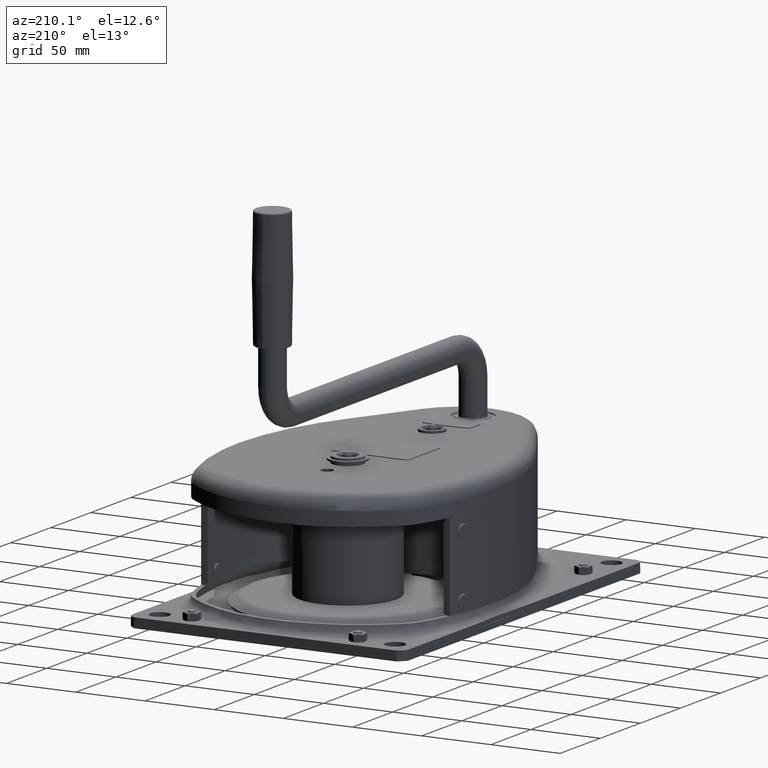
[diagram: clean part render]
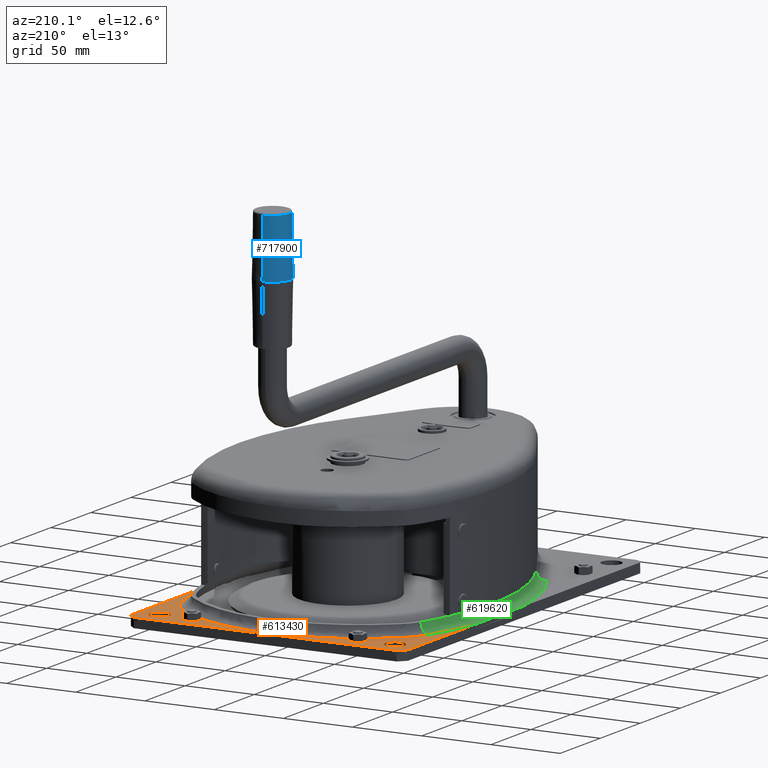
[diagram: same view with three faces highlighted in distinct colors, each labeled with its STEP entity id]
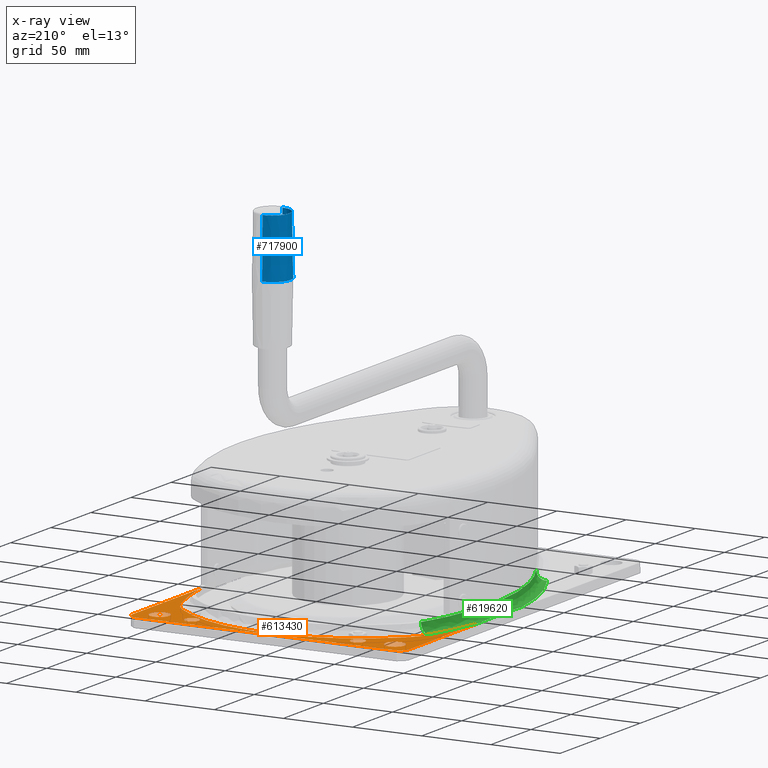
[diagram: x-ray of the same camera — body ghosted, the three highlighted faces saturated]
A machine part, auxiliary view with three faces highlighted in distinct colors.
The next image is the same camera in x-ray (body ghosted, the three faces saturated) — at least one of them is partly hidden behind the body in this view.
Their STEP definitions:

[orange] entity #613430 — the highlighted planar face has unit normal (0, 0, 1).
#603330=CARTESIAN_POINT('',(98.1871716525991,-104.729553244837,80.));
#603340=DIRECTION('',(0.0174524064372835,0.999847695156391,0.));
#603350=VECTOR('',#603340,1.);
#603360=LINE('',#603330,#603350);
#605210=CARTESIAN_POINT('',(99.780482113474,-13.4488580754262,80.));
#605220=VERTEX_POINT('',#605210);
#605250=CARTESIAN_POINT('',(98.3093384976601,-97.7306193787422,80.));
#605260=VERTEX_POINT('',#605250);
#605270=EDGE_CURVE('',#605260,#605220,#603360,.T.);
#605510=CARTESIAN_POINT('',(-101.660200533618,-94.2401380912856,80.));
#605520=VERTEX_POINT('',#605510);
#605550=CARTESIAN_POINT('',(-96.5466454474941,198.715236589537,80.));
#605560=DIRECTION('',(-0.0174524064372835,-0.999847695156391,0.));
#605570=VECTOR('',#605560,1.);
#605580=LINE('',#605550,#605570);
#605590=CARTESIAN_POINT('',(-100.189056918394,-9.95837682173562,80.));
#605600=VERTEX_POINT('',#605590);
#605610=EDGE_CURVE('',#605600,#605520,#605580,.T.);
#608570=CARTESIAN_POINT('',(-96.5466454474941,198.715236589537,80.));
#608580=DIRECTION('',(0.,-0.,-1.));
#608590=DIRECTION('',(0.999847695156391,-0.0174524064372835,0.));
#608600=AXIS2_PLACEMENT_3D('',#608570,#608580,#608590);
#608610=PLANE('',#608600);
#610090=CARTESIAN_POINT('',(-90.3200556012915,-52.5797952541012,80.));
#610100=CARTESIAN_POINT('',(-90.4410247330788,-52.2299720672284,80.));
#610110=CARTESIAN_POINT('',(-90.5613935581654,-51.8799412792595,80.));
#610120=CARTESIAN_POINT('',(-93.1036679221178,-44.4102403549494,80.));
#610130=CARTESIAN_POINT('',(-95.1371604526582,-37.1634754640695,80.));
#610140=CARTESIAN_POINT('',(-98.6279890318529,-21.4846917592984,80.));
#610150=CARTESIAN_POINT('',(-99.9663917189243,-13.0410837653149,80.));
#610160=CARTESIAN_POINT('',(-101.592365611007,3.963061561107,80.));
#610170=CARTESIAN_POINT('',(-101.87837841351,12.5073013977237,80.));
#610180=CARTESIAN_POINT('',(-101.393175298389,29.5821169851113,80.));
#610190=CARTESIAN_POINT('',(-100.622424419963,38.0963275066738,80.));
#610200=CARTESIAN_POINT('',(-98.0334641733759,54.98069999351,80.));
#610210=CARTESIAN_POINT('',(-96.2177361747872,63.3346792583405,80.));
#610220=CARTESIAN_POINT('',(-91.5646099776627,79.7704075971235,80.));
#610230=CARTESIAN_POINT('',(-88.7316715331054,87.8364039702585,80.));
#610240=CARTESIAN_POINT('',(-82.2295584163411,103.231153784188,80.));
#610250=CARTESIAN_POINT('',(-78.6077773218684,110.562905684943,80.));
#610260=CARTESIAN_POINT('',(-74.3790964269654,117.98268360638,80.));
#610270=CARTESIAN_POINT('',(-74.194800907864,118.30368817892,80.));
#610280=CARTESIAN_POINT('',(-74.0099550838915,118.624375537057,80.));
#610290=B_SPLINE_CURVE_WITH_KNOTS('',3,(#610090,#610100,#610110,#610120,
#610130,#610140,#610150,#610160,#610170,#610180,#610190,#610200,#610210,
#610220,#610230,#610240,#610250,#610260,#610270,#610280),.UNSPECIFIED.,
.F.,.F.,(4,2,2,2,2,2,2,2,2,4),(0.,1.09154099031254,23.268442179075,
48.4497372926723,73.6310324062694,98.812327522146,123.993622638023,
149.1749177539,173.264853735063,174.356256054814),.UNSPECIFIED.);
#610350=CARTESIAN_POINT('',(78.1048012218286,115.969202589201,80.));
#610360=CARTESIAN_POINT('',(78.2783435235066,115.642257850143,80.));
#610370=CARTESIAN_POINT('',(78.4513247808119,115.315015293084,80.));
#610380=CARTESIAN_POINT('',(82.1166719008934,108.327539262062,80.));
#610390=CARTESIAN_POINT('',(85.2449121594937,101.481751791104,80.));
#610400=CARTESIAN_POINT('',(91.1151911316954,86.5301643393107,80.));
#610410=CARTESIAN_POINT('',(93.7415130621304,78.3945469179629,80.));
#610420=CARTESIAN_POINT('',(97.9739898743574,61.8455019481236,80.));
#610430=CARTESIAN_POINT('',(99.5760881704265,53.4479357079229,80.));
#610440=CARTESIAN_POINT('',(101.733629224764,36.503031871381,80.));
#610450=CARTESIAN_POINT('',(102.287004103772,27.9719349912778,80.));
#610460=CARTESIAN_POINT('',(102.336615614319,10.8902989987907,80.));
#610470=CARTESIAN_POINT('',(101.832804696076,2.35613165258269,80.));
#610480=CARTESIAN_POINT('',(99.7737279880781,-14.60101883305,80.));
#610490=CARTESIAN_POINT('',(98.220435704984,-23.0077495185009,80.));
#610500=CARTESIAN_POINT('',(94.1737920846206,-39.2219553976427,80.));
#610510=CARTESIAN_POINT('',(91.7277288157936,-47.0250739239347,80.));
#610520=CARTESIAN_POINT('',(88.6956407748134,-55.0088880899112,80.));
#610530=CARTESIAN_POINT('',(88.5631299669679,-55.3545029902722,80.));
#610540=CARTESIAN_POINT('',(88.430026570216,-55.6998895065706,80.));
#610550=B_SPLINE_CURVE_WITH_KNOTS('',3,(#610350,#610360,#610370,#610380,
#610390,#610400,#610410,#610420,#610430,#610440,#610450,#610460,#610470,
#610480,#610490,#610500,#610510,#610520,#610530,#610540),.UNSPECIFIED.,
.F.,.F.,(4,2,2,2,2,2,2,2,2,4),(0.,1.09154099010989,23.2684421705911,
48.449737284188,73.6310323977846,98.812327515783,123.993622633781,
149.17491775178,173.264853736531,174.356256054546),.UNSPECIFIED.);
#610950=CARTESIAN_POINT('',(-79.5239319886793,-86.6253094716546,80.));
#610960=VERTEX_POINT('',#610950);
#610990=CARTESIAN_POINT('',(-86.522865854774,-86.5031426265936,80.));
#611000=DIRECTION('',(0.,-0.,-1.));
#611010=DIRECTION('',(0.999847695156391,-0.0174524064372835,0.));
#611020=AXIS2_PLACEMENT_3D('',#610990,#611000,#611010);
#611030=CIRCLE('',#611020,7.);
#611040=CARTESIAN_POINT('',(-93.5217997208688,-86.3809757815327,80.));
#611050=VERTEX_POINT('',#611040);
#611060=EDGE_CURVE('',#611050,#610960,#611030,.T.);
#611180=CARTESIAN_POINT('',(83.4512423218125,-89.4700517209318,80.));
#611190=DIRECTION('',(0.,-0.,-1.));
#611200=DIRECTION('',(0.999847695156391,-0.0174524064372835,0.));
#611210=AXIS2_PLACEMENT_3D('',#611180,#611190,#611200);
#611220=CIRCLE('',#611210,7.);
#611230=CARTESIAN_POINT('',(90.4501761879072,-89.5922185659928,80.));
#611240=VERTEX_POINT('',#611230);
#611250=CARTESIAN_POINT('',(76.4523084557177,-89.3478848758708,80.));
#611260=VERTEX_POINT('',#611250);
#611270=EDGE_CURVE('',#611240,#611260,#611220,.T.);
#611280=ORIENTED_EDGE('',*,*,#611270,.F.);
#611290=EDGE_CURVE('',#611260,#611240,#611220,.T.);
#611300=ORIENTED_EDGE('',*,*,#611290,.F.);
#611310=EDGE_LOOP('',(#611300,#611280));
#611320=FACE_BOUND('',#611310,.T.);
#611330=CARTESIAN_POINT('',(-61.5790306951761,-89.9389958729949,
79.9999999999999));
#611340=DIRECTION('',(3.20595505212568E-18,1.8366904192622E-16,-1.));
#611350=DIRECTION('',(-0.999847695156391,0.0174524064372835,0.));
#611360=AXIS2_PLACEMENT_3D('',#611330,#611340,#611350);
#611370=CIRCLE('',#611360,5.0000000000001);
#611380=CARTESIAN_POINT('',(-59.0038403206257,-85.6531593694842,
79.9999999999999));
#611390=VERTEX_POINT('',#611380);
#611400=CARTESIAN_POINT('',(-56.5797922193941,-90.0262579051813,
79.9999999999999));
#611410=VERTEX_POINT('',#611400);
#611420=EDGE_CURVE('',#611390,#611410,#611370,.T.);
#611430=ORIENTED_EDGE('',*,*,#611420,.F.);
#611440=CARTESIAN_POINT('',(-61.5790306951761,-89.9389958729949,
79.9999999999999));
#611450=DIRECTION('',(3.20595505212568E-18,1.8366904192622E-16,-1.));
#611460=DIRECTION('',(-0.999847695156391,0.0174524064372835,0.));
#611470=AXIS2_PLACEMENT_3D('',#611440,#611450,#611460);
#611480=CIRCLE('',#611470,5.0000000000001);
#611490=CARTESIAN_POINT('',(-59.1549825939444,-94.312094408692,
79.9999999999999));
#611500=VERTEX_POINT('',#611490);
#611510=EDGE_CURVE('',#611410,#611500,#611480,.T.);
#611520=ORIENTED_EDGE('',*,*,#611510,.F.);
#611530=CARTESIAN_POINT('',(-61.5790306951761,-89.9389958729949,
79.9999999999999));
#611540=DIRECTION('',(3.20595505212568E-18,1.8366904192622E-16,-1.));
#611550=DIRECTION('',(-0.999847695156391,0.0174524064372835,0.));
#611560=AXIS2_PLACEMENT_3D('',#611530,#611540,#611550);
#611570=CIRCLE('',#611560,5.0000000000001);
#611580=CARTESIAN_POINT('',(-64.1542210697265,-94.2248323765055,
79.9999999999999));
#611590=VERTEX_POINT('',#611580);
#611600=EDGE_CURVE('',#611500,#611590,#611570,.T.);
#611610=ORIENTED_EDGE('',*,*,#611600,.F.);
#611620=CARTESIAN_POINT('',(-61.5790306951761,-89.9389958729949,
79.9999999999999));
#611630=DIRECTION('',(3.20595505212568E-18,1.8366904192622E-16,-1.));
#611640=DIRECTION('',(-0.999847695156391,0.0174524064372835,0.));
#611650=AXIS2_PLACEMENT_3D('',#611620,#611630,#611640);
#611660=CIRCLE('',#611650,5.0000000000001);
#611670=CARTESIAN_POINT('',(-66.5782691709582,-89.8517338408084,
79.9999999999999));
#611680=VERTEX_POINT('',#611670);
#611690=EDGE_CURVE('',#611590,#611680,#611660,.T.);
#611700=ORIENTED_EDGE('',*,*,#611690,.F.);
#611710=CARTESIAN_POINT('',(-61.5790306951761,-89.9389958729949,
79.9999999999999));
#611720=DIRECTION('',(3.20595505212568E-18,1.8366904192622E-16,-1.));
#611730=DIRECTION('',(-0.999847695156391,0.0174524064372835,0.));
#611740=AXIS2_PLACEMENT_3D('',#611710,#611720,#611730);
#611750=CIRCLE('',#611740,5.0000000000001);
#611760=CARTESIAN_POINT('',(-64.0030787964078,-85.5658973372978,
79.9999999999999));
#611770=VERTEX_POINT('',#611760);
#611780=EDGE_CURVE('',#611680,#611770,#611750,.T.);
#611790=ORIENTED_EDGE('',*,*,#611780,.F.);
#611800=CARTESIAN_POINT('',(-61.5790306951761,-89.9389958729949,
79.9999999999999));
#611810=DIRECTION('',(3.20595505212568E-18,1.8366904192622E-16,-1.));
#611820=DIRECTION('',(-0.999847695156391,0.0174524064372835,0.));
#611830=AXIS2_PLACEMENT_3D('',#611800,#611810,#611820);
#611840=CIRCLE('',#611830,5.0000000000001);
#611850=EDGE_CURVE('',#611770,#611390,#611840,.T.);
#611860=ORIENTED_EDGE('',*,*,#611850,.F.);
#611870=EDGE_LOOP('',(#611860,#611790,#611700,#611610,#611520,#611430));
#611880=FACE_BOUND('',#611870,.T.);
#611890=CARTESIAN_POINT('',(58.4026927235909,-92.0332846454689,
79.9999999999999));
#611900=DIRECTION('',(3.20595505212568E-18,1.8366904192622E-16,-1.));
#611910=DIRECTION('',(-0.999847695156391,0.0174524064372835,0.));
#611920=AXIS2_PLACEMENT_3D('',#611890,#611900,#611910);
#611930=CIRCLE('',#611920,5.0000000000001);
#611940=CARTESIAN_POINT('',(53.4034542478088,-91.9460226132824,
79.9999999999999));
#611950=VERTEX_POINT('',#611940);
#611960=CARTESIAN_POINT('',(55.9786446223592,-87.6601861097718,
79.9999999999999));
#611970=VERTEX_POINT('',#611960);
#611980=EDGE_CURVE('',#611950,#611970,#611930,.T.);
#611990=ORIENTED_EDGE('',*,*,#611980,.F.);
#612000=CARTESIAN_POINT('',(58.4026927235909,-92.0332846454689,
79.9999999999999));
#612010=DIRECTION('',(3.20595505212568E-18,1.8366904192622E-16,-1.));
#612020=DIRECTION('',(-0.999847695156391,0.0174524064372835,0.));
#612030=AXIS2_PLACEMENT_3D('',#612000,#612010,#612020);
#612040=CIRCLE('',#612030,5.0000000000001);
#612050=CARTESIAN_POINT('',(60.9778830981412,-87.7474481419583,
79.9999999999999));
#612060=VERTEX_POINT('',#612050);
#612070=EDGE_CURVE('',#611970,#612060,#612040,.T.);
#612080=ORIENTED_EDGE('',*,*,#612070,.F.);
#612090=CARTESIAN_POINT('',(58.4026927235909,-92.0332846454689,
79.9999999999999));
#612100=DIRECTION('',(3.20595505212568E-18,1.8366904192622E-16,-1.));
#612110=DIRECTION('',(-0.999847695156391,0.0174524064372835,0.));
#612120=AXIS2_PLACEMENT_3D('',#612090,#612100,#612110);
#612130=CIRCLE('',#612120,5.0000000000001);
#612140=CARTESIAN_POINT('',(63.4019311993729,-92.1205466776553,
79.9999999999999));
#612150=VERTEX_POINT('',#612140);
#612160=EDGE_CURVE('',#612060,#612150,#612130,.T.);
#612170=ORIENTED_EDGE('',*,*,#612160,.F.);
#612180=CARTESIAN_POINT('',(58.4026927235909,-92.0332846454689,
79.9999999999999));
#612190=DIRECTION('',(3.20595505212568E-18,1.8366904192622E-16,-1.));
#612200=DIRECTION('',(-0.999847695156391,0.0174524064372835,0.));
#612210=AXIS2_PLACEMENT_3D('',#612180,#612190,#612200);
#612220=CIRCLE('',#612210,5.0000000000001);
#612230=CARTESIAN_POINT('',(60.8267408248225,-96.406383181166,
79.9999999999999));
#612240=VERTEX_POINT('',#612230);
#612250=EDGE_CURVE('',#612150,#612240,#612220,.T.);
#612260=ORIENTED_EDGE('',*,*,#612250,.F.);
#612270=CARTESIAN_POINT('',(58.4026927235909,-92.0332846454689,
79.9999999999999));
#612280=DIRECTION('',(3.20595505212568E-18,1.8366904192622E-16,-1.));
#612290=DIRECTION('',(-0.999847695156391,0.0174524064372835,0.));
#612300=AXIS2_PLACEMENT_3D('',#612270,#612280,#612290);
#612310=CIRCLE('',#612300,5.0000000000001);
#612320=CARTESIAN_POINT('',(55.8275023490405,-96.3191211489795,
79.9999999999999));
#612330=VERTEX_POINT('',#612320);
#612340=EDGE_CURVE('',#612240,#612330,#612310,.T.);
#612350=ORIENTED_EDGE('',*,*,#612340,.F.);
#612360=CARTESIAN_POINT('',(58.4026927235909,-92.0332846454689,
79.9999999999999));
#612370=DIRECTION('',(3.20595505212568E-18,1.8366904192622E-16,-1.));
#612380=DIRECTION('',(-0.999847695156391,0.0174524064372835,0.));
#612390=AXIS2_PLACEMENT_3D('',#612360,#612370,#612380);
#612400=CIRCLE('',#612390,5.0000000000001);
#612410=EDGE_CURVE('',#612330,#611950,#612400,.T.);
#612420=ORIENTED_EDGE('',*,*,#612410,.F.);
#612430=EDGE_LOOP('',(#612420,#612350,#612260,#612170,#612080,#611990));
#612440=FACE_BOUND('',#612430,.T.);
#612450=EDGE_CURVE('',#610960,#611050,#611030,.T.);
#612460=ORIENTED_EDGE('',*,*,#612450,.F.);
#612470=ORIENTED_EDGE('',*,*,#611060,.F.);
#612480=EDGE_LOOP('',(#612470,#612460));
#612490=FACE_BOUND('',#612480,.T.);
#612500=CARTESIAN_POINT('',(91.3104046315654,-97.6084525336812,80.));
#612510=DIRECTION('',(0.,-0.,-1.));
#612520=DIRECTION('',(0.999847695156391,-0.0174524064372835,0.));
#612530=AXIS2_PLACEMENT_3D('',#612500,#612510,#612520);
#612540=CIRCLE('',#612530,7.);
#612550=CARTESIAN_POINT('',(91.1882377865044,-104.607386399776,80.));
#612560=VERTEX_POINT('',#612550);
#612570=EDGE_CURVE('',#605260,#612560,#612540,.T.);
#612580=ORIENTED_EDGE('',*,*,#612570,.T.);
#612590=ORIENTED_EDGE('',*,*,#605270,.F.);
#612600=CARTESIAN_POINT('',(88.430026570216,-55.6998895065706,80.));
#612610=VERTEX_POINT('',#612600);
#612620=EDGE_CURVE('',#605220,#612610,#610550,.T.);
#612630=ORIENTED_EDGE('',*,*,#612620,.F.);
#612640=CARTESIAN_POINT('',(88.430026570216,-55.6998895065706,80.));
#612650=CARTESIAN_POINT('',(88.2829722407023,-56.0778836763042,80.));
#612660=CARTESIAN_POINT('',(88.1317461607493,-56.4542532071847,80.));
#612670=CARTESIAN_POINT('',(87.5328713401354,-57.8659842397067,80.));
#612680=CARTESIAN_POINT('',(87.0447510554527,-58.8845681548422,80.));
#612690=CARTESIAN_POINT('',(85.5073234915129,-61.7481517398949,80.));
#612700=CARTESIAN_POINT('',(84.3456618286415,-63.5265507276977,80.));
#612710=CARTESIAN_POINT('',(81.9806855068091,-66.5454527955084,80.));
#612720=CARTESIAN_POINT('',(80.8310121532727,-67.8197350504433,80.));
#612730=CARTESIAN_POINT('',(79.3057038006072,-69.2909071817456,80.));
#612740=CARTESIAN_POINT('',(79.0085070067546,-69.5667733612238,80.));
#612750=CARTESIAN_POINT('',(78.7083018838568,-69.8393283219234,80.));
#612760=B_SPLINE_CURVE_WITH_KNOTS('',3,(#612640,#612650,#612660,#612670,
#612680,#612690,#612700,#612710,#612720,#612730,#612740,#612750),
.UNSPECIFIED.,.F.,.F.,(4,2,2,2,2,4),(0.,1.10296859692646,
4.17019979192753,9.92578331095837,14.5803621224675,15.6816753343745),
.UNSPECIFIED.);
#612770=CARTESIAN_POINT('',(78.7083018838568,-69.8393283219234,80.));
#612780=VERTEX_POINT('',#612770);
#612790=EDGE_CURVE('',#612610,#612780,#612760,.T.);
#612800=ORIENTED_EDGE('',*,*,#612790,.F.);
#612810=CARTESIAN_POINT('',(78.7083018838568,-69.8393283219234,80.));
#612820=CARTESIAN_POINT('',(78.4293201908123,-70.0908098874992,80.));
#612830=CARTESIAN_POINT('',(78.1495574469873,-70.3414250189458,80.));
#612840=CARTESIAN_POINT('',(73.1797257397408,-74.7429271057852,80.));
#612850=CARTESIAN_POINT('',(68.1610995856646,-78.5158636820717,80.));
#612860=CARTESIAN_POINT('',(54.692917593602,-87.0383807059084,80.));
#612870=CARTESIAN_POINT('',(45.9176607747844,-91.1743160981825,80.));
#612880=CARTESIAN_POINT('',(27.5506215091759,-97.1937388493579,80.));
#612890=CARTESIAN_POINT('',(18.0295734146755,-99.0540444660465,80.));
#612900=CARTESIAN_POINT('',(-1.2524032621029,-100.390815605004,80.));
#612910=CARTESIAN_POINT('',(-10.9390739244523,-99.8621330117098,80.));
#612920=CARTESIAN_POINT('',(-29.9610333874464,-96.434795877726,80.));
#612930=CARTESIAN_POINT('',(-39.2230656352819,-93.5493405505153,80.));
#612940=CARTESIAN_POINT('',(-54.1306126513169,-86.7890092953691,80.));
#612950=CARTESIAN_POINT('',(-59.9874285031566,-83.5002375101533,80.));
#612960=CARTESIAN_POINT('',(-70.7625497297776,-76.1671799740958,80.));
#612970=CARTESIAN_POINT('',(-75.6967737734782,-72.1879822932209,80.));
#612980=CARTESIAN_POINT('',(-80.5568525818179,-67.5711741823742,80.));
#612990=CARTESIAN_POINT('',(-80.8276877694983,-67.3109583073274,80.));
#613000=CARTESIAN_POINT('',(-81.0977122450357,-67.0499038891391,80.));
#613010=B_SPLINE_CURVE_WITH_KNOTS('',3,(#612810,#612820,#612830,#612840,
#612850,#612860,#612870,#612880,#612890,#612900,#612910,#612920,#612930,
#612940,#612950,#612960,#612970,#612980,#612990,#613000),.UNSPECIFIED.,
.F.,.F.,(4,2,2,2,2,2,2,2,2,4),(0.,1.09432074039033,19.3421558232551,
47.4499546697541,75.557753516253,103.665552362752,131.773351209251,
151.273611776488,169.681393608144,170.773978615288),.UNSPECIFIED.);
#613020=CARTESIAN_POINT('',(-81.0977122450357,-67.0499038891391,80.));
#613030=VERTEX_POINT('',#613020);
#613040=EDGE_CURVE('',#612780,#613030,#613010,.T.);
#613050=ORIENTED_EDGE('',*,*,#613040,.F.);
#613060=CARTESIAN_POINT('',(-81.0977122450357,-67.0499038891391,80.));
#613070=CARTESIAN_POINT('',(-81.3883065978535,-66.7669560312363,80.));
#613080=CARTESIAN_POINT('',(-81.6757766487553,-66.4808016657838,80.));
#613090=CARTESIAN_POINT('',(-82.7417020837762,-65.378332379748,80.));
#613100=CARTESIAN_POINT('',(-83.4889117989804,-64.531306850893,80.));
#613110=CARTESIAN_POINT('',(-85.5250968208241,-61.9979799828131,80.));
#613120=CARTESIAN_POINT('',(-86.7088949539029,-60.2342388571329,80.));
#613130=CARTESIAN_POINT('',(-88.5650150162606,-56.8783930605932,80.));
#613140=CARTESIAN_POINT('',(-89.2893764100816,-55.3224866830091,80.));
#613150=CARTESIAN_POINT('',(-90.0483643005628,-53.3438885954145,80.));
#613160=CARTESIAN_POINT('',(-90.186321390706,-52.9625804201345,80.));
#613170=CARTESIAN_POINT('',(-90.3200556012915,-52.5797952541012,80.));
#613180=B_SPLINE_CURVE_WITH_KNOTS('',3,(#613060,#613070,#613080,#613090,
#613100,#613110,#613120,#613130,#613140,#613150,#613160,#613170),
.UNSPECIFIED.,.F.,.F.,(4,2,2,2,2,4),(0.,1.1029685969268,4.17019979257199
,9.92578331128115,14.5803621224686,15.6816753343758),.UNSPECIFIED.);
#613190=CARTESIAN_POINT('',(-90.3200556012915,-52.5797952541012,80.));
#613200=VERTEX_POINT('',#613190);
#613210=EDGE_CURVE('',#613030,#613200,#613180,.T.);
#613220=ORIENTED_EDGE('',*,*,#613210,.F.);
#613230=EDGE_CURVE('',#613200,#605600,#610290,.T.);
#613240=ORIENTED_EDGE('',*,*,#613230,.F.);
#613250=ORIENTED_EDGE('',*,*,#605610,.F.);
#613260=CARTESIAN_POINT('',(-94.6612666675234,-94.3623049363465,80.));
#613270=DIRECTION('',(0.,-0.,-1.));
#613280=DIRECTION('',(0.999847695156391,-0.0174524064372835,0.));
#613290=AXIS2_PLACEMENT_3D('',#613260,#613270,#613280);
#613300=CIRCLE('',#613290,7.);
#613310=CARTESIAN_POINT('',(-94.7834335125845,-101.361238802441,80.));
#613320=VERTEX_POINT('',#613310);
#613330=EDGE_CURVE('',#613320,#605520,#613300,.T.);
#613340=ORIENTED_EDGE('',*,*,#613330,.T.);
#613350=CARTESIAN_POINT('',(-101.782367378679,-101.23907195738,80.));
#613360=DIRECTION('',(0.999847695156391,-0.0174524064372835,0.));
#613370=VECTOR('',#613360,1.);
#613380=LINE('',#613350,#613370);
#613390=EDGE_CURVE('',#613320,#612560,#613380,.T.);
#613400=ORIENTED_EDGE('',*,*,#613390,.F.);
#613410=EDGE_LOOP('',(#613400,#613340,#613250,#613240,#613220,#613050,
#612800,#612630,#612590,#612580));
#613420=FACE_OUTER_BOUND('',#613410,.T.);
#613430=ADVANCED_FACE('',(#611320,#611880,#612440,#612490,#613420),
#608610,.T.);

[blue] entity #717900 — the highlighted conical surface has half-angle 1 deg.
#717290=CARTESIAN_POINT('',(211.5,-263.,0.));
#717300=VERTEX_POINT('',#717290);
#717330=CARTESIAN_POINT('',(211.5,-250.,0.));
#717340=DIRECTION('',(1.,0.,0.));
#717350=DIRECTION('',(0.,1.,0.));
#717360=AXIS2_PLACEMENT_3D('',#717330,#717340,#717350);
#717370=CIRCLE('',#717360,13.);
#717380=CARTESIAN_POINT('',(211.5,-237.,-1.59204083889156E-15));
#717390=VERTEX_POINT('',#717380);
#717400=EDGE_CURVE('',#717300,#717390,#717370,.T.);
#717590=CARTESIAN_POINT('',(211.5,-250.,0.));
#717600=DIRECTION('',(-1.,0.,0.));
#717610=DIRECTION('',(0.,1.,0.));
#717620=AXIS2_PLACEMENT_3D('',#717590,#717600,#717610);
#717630=CONICAL_SURFACE('',#717620,13.,0.0174532925199439);
#717640=CARTESIAN_POINT('',(211.5,-263.,-1.59204083889156E-15));
#717650=DIRECTION('',(-0.999847695156391,-0.0174524064372841,
-2.13730336808386E-18));
#717660=VECTOR('',#717650,744.882950481128);
#717670=LINE('',#717640,#717660);
#717680=CARTESIAN_POINT('',(254.017452406437,-262.257855107663,0.));
#717690=VERTEX_POINT('',#717680);
#717700=EDGE_CURVE('',#717690,#717300,#717670,.T.);
#717710=ORIENTED_EDGE('',*,*,#717700,.T.);
#717720=CARTESIAN_POINT('',(254.017452406437,-250.,0.));
#717730=DIRECTION('',(1.,0.,0.));
#717740=DIRECTION('',(0.,1.,0.));
#717750=AXIS2_PLACEMENT_3D('',#717720,#717730,#717740);
#717760=CIRCLE('',#717750,12.2578551076632);
#717770=CARTESIAN_POINT('',(254.017452406437,-237.742144892337,0.));
#717780=VERTEX_POINT('',#717770);
#717790=EDGE_CURVE('',#717690,#717780,#717760,.T.);
#717800=ORIENTED_EDGE('',*,*,#717790,.F.);
#717810=CARTESIAN_POINT('',(211.5,-237.,0.));
#717820=DIRECTION('',(-0.999847695156391,0.0174524064372841,0.));
#717830=VECTOR('',#717820,744.882950481128);
#717840=LINE('',#717810,#717830);
#717850=EDGE_CURVE('',#717780,#717390,#717840,.T.);
#717860=ORIENTED_EDGE('',*,*,#717850,.F.);
#717870=ORIENTED_EDGE('',*,*,#717400,.T.);
#717880=EDGE_LOOP('',(#717870,#717860,#717800,#717710));
#717890=FACE_OUTER_BOUND('',#717880,.T.);
#717900=ADVANCED_FACE('',(#717890),#717630,.T.);

[green] entity #619620 — the highlighted face is a freeform B-spline surface patch.
#50640=CARTESIAN_POINT('',(-67.9469861085619,115.125746204848,73.));
#50650=VERTEX_POINT('',#50640);
#57500=CARTESIAN_POINT('',(-74.0099550838915,118.624375537057,80.));
#57510=VERTEX_POINT('',#57500);
#57540=CARTESIAN_POINT('',(-67.946986108562,115.125746204848,73.));
#57550=CARTESIAN_POINT('',(-67.9469861085619,115.125746204848,
77.1005050633883));
#57560=CARTESIAN_POINT('',(-70.4583500863908,116.574925923965,80.));
#57570=CARTESIAN_POINT('',(-74.0099550838915,118.624375537057,80.));
#57580=(BOUNDED_CURVE() B_SPLINE_CURVE(3,(#57540,#57550,#57560,#57570),
.UNSPECIFIED.,.F.,.F.) B_SPLINE_CURVE_WITH_KNOTS((4,4),(0.,1.),
.UNSPECIFIED.) CURVE() GEOMETRIC_REPRESENTATION_ITEM() 
RATIONAL_B_SPLINE_CURVE((1.,0.804737854124365,0.804737854124365,1.)) 
REPRESENTATION_ITEM(''));
#57590=EDGE_CURVE('',#50650,#57510,#57580,.T.);
#62830=CARTESIAN_POINT('',(-96.5466454474941,198.715236589537,83.));
#62840=DIRECTION('',(-0.999847695156391,0.0174524064372835,0.));
#62850=DIRECTION('',(-0.0174524064372835,-0.999847695156391,0.));
#62860=AXIS2_PLACEMENT_3D('',#62830,#62840,#62850);
#62870=PLANE('',#62860);
#70030=CARTESIAN_POINT('',(-90.3467321760549,-26.4272571090443,73.));
#70040=VERTEX_POINT('',#70030);
#532260=CARTESIAN_POINT('',(-83.705537333103,-50.2889115643867,73.));
#532270=CARTESIAN_POINT('',(-83.8225790246257,-49.9509745446277,73.));
#532280=CARTESIAN_POINT('',(-83.9387141030294,-49.6127241490806,73.));
#532290=CARTESIAN_POINT('',(-86.3950178363168,-42.395621806752,73.));
#532300=CARTESIAN_POINT('',(-88.3597449189645,-35.3939165981724,73.));
#532310=CARTESIAN_POINT('',(-91.7325261549015,-20.2453333085384,73.));
#532320=CARTESIAN_POINT('',(-93.025668847724,-12.0872579520328,73.));
#532330=CARTESIAN_POINT('',(-94.5966581154363,4.34186796721556,73.));
#532340=CARTESIAN_POINT('',(-94.8729989874204,12.5971721571832,73.));
#532350=CARTESIAN_POINT('',(-94.40420370711,29.0945785218091,73.));
#532360=CARTESIAN_POINT('',(-93.6595168680509,37.3208688808066,73.));
#532370=CARTESIAN_POINT('',(-91.1581060017835,53.6342722497305,73.));
#532380=CARTESIAN_POINT('',(-89.4037794330988,61.7057498002914,73.));
#532390=CARTESIAN_POINT('',(-84.9080053295969,77.5856805624005,73.));
#532400=CARTESIAN_POINT('',(-82.1708667358218,85.3789137731588,73.));
#532410=CARTESIAN_POINT('',(-75.8886318403972,100.253068182753,73.));
#532420=CARTESIAN_POINT('',(-72.3893264351097,107.336886444352,73.));
#532430=CARTESIAN_POINT('',(-68.3036444110488,114.505754001295,73.));
#532440=CARTESIAN_POINT('',(-68.1257308244287,114.815989564776,73.));
#532450=CARTESIAN_POINT('',(-67.946986108562,115.125746204848,73.));
#532460=B_SPLINE_CURVE_WITH_KNOTS('',3,(#532260,#532270,#532280,#532290,
#532300,#532310,#532320,#532330,#532340,#532350,#532360,#532370,#532380,
#532390,#532400,#532410,#532420,#532430,#532440,#532450),.UNSPECIFIED.,
.F.,.F.,(4,2,2,2,2,2,2,2,2,4),(0.,1.09154099031254,23.268442179075,
48.4497372926723,73.6310324062694,98.812327522146,123.993622638023,
149.1749177539,173.264853735063,174.356256054814),.UNSPECIFIED.);
#532470=EDGE_CURVE('',#70040,#50650,#532460,.T.);
#589620=CARTESIAN_POINT('',(105.280698900855,15.1649081417436,73.));
#589630=DIRECTION('',(0.,-0.,-1.));
#589640=DIRECTION('',(0.999847695156391,-0.0174524064372835,0.));
#589650=AXIS2_PLACEMENT_3D('',#589620,#589630,#589640);
#589660=CIRCLE('',#589650,200.);
#589670=CARTESIAN_POINT('',(-83.705537333103,-50.2889115643866,73.));
#589680=VERTEX_POINT('',#589670);
#589690=EDGE_CURVE('',#589680,#70040,#589660,.T.);
#605590=CARTESIAN_POINT('',(-100.189056918394,-9.95837682173562,80.));
#605600=VERTEX_POINT('',#605590);
#605630=CARTESIAN_POINT('',(-83.705537333103,-50.2889115643867,73.));
#605640=CARTESIAN_POINT('',(-83.8225790246257,-49.9509745446277,73.));
#605650=CARTESIAN_POINT('',(-83.9387141030294,-49.6127241490806,73.));
#605660=CARTESIAN_POINT('',(-86.3950178363168,-42.395621806752,73.));
#605670=CARTESIAN_POINT('',(-88.3597449189645,-35.3939165981724,73.));
#605680=CARTESIAN_POINT('',(-91.7325261549015,-20.2453333085384,73.));
#605690=CARTESIAN_POINT('',(-93.025668847724,-12.0872579520328,73.));
#605700=CARTESIAN_POINT('',(-94.5966581154363,4.34186796721556,73.));
#605710=CARTESIAN_POINT('',(-94.8729989874204,12.5971721571832,73.));
#605720=CARTESIAN_POINT('',(-94.40420370711,29.0945785218091,73.));
#605730=CARTESIAN_POINT('',(-93.6595168680509,37.3208688808066,73.));
#605740=CARTESIAN_POINT('',(-91.1581060017835,53.6342722497305,73.));
#605750=CARTESIAN_POINT('',(-89.4037794330988,61.7057498002914,73.));
#605760=CARTESIAN_POINT('',(-84.9080053295969,77.5856805624005,73.));
#605770=CARTESIAN_POINT('',(-82.1708667358218,85.3789137731588,73.));
#605780=CARTESIAN_POINT('',(-75.8886318403972,100.253068182753,73.));
#605790=CARTESIAN_POINT('',(-72.3893264351097,107.336886444352,73.));
#605800=CARTESIAN_POINT('',(-68.3036444110488,114.505754001295,73.));
#605810=CARTESIAN_POINT('',(-68.1257308244287,114.815989564776,73.));
#605820=CARTESIAN_POINT('',(-67.946986108562,115.125746204848,73.));
#605830=CARTESIAN_POINT('',(-83.705537333103,-50.2889115643866,
77.1005050633883));
#605840=CARTESIAN_POINT('',(-83.8225790246257,-49.9509745446277,
77.1004527065056));
#605850=CARTESIAN_POINT('',(-83.9387141030294,-49.6127241490806,
77.1005050576035));
#605860=CARTESIAN_POINT('',(-86.3950178363168,-42.395621806752,
77.1005050622416));
#605870=CARTESIAN_POINT('',(-88.3597449189645,-35.3939165981724,
77.1005050652573));
#605880=CARTESIAN_POINT('',(-91.7325261549015,-20.2453333085384,
77.1005050640189));
#605890=CARTESIAN_POINT('',(-93.025668847724,-12.0872579520328,
77.100505064019));
#605900=CARTESIAN_POINT('',(-94.5966581154363,4.34186796721556,
77.100505064019));
#605910=CARTESIAN_POINT('',(-94.8729989874204,12.5971721571832,
77.100505064019));
#605920=CARTESIAN_POINT('',(-94.40420370711,29.0945785218091,
77.100505064019));
#605930=CARTESIAN_POINT('',(-93.6595168680509,37.3208688808066,
77.1005050640189));
#605940=CARTESIAN_POINT('',(-91.1581060017835,53.6342722497305,
77.1005050640189));
#605950=CARTESIAN_POINT('',(-89.4037794330988,61.7057498002914,
77.100505064019));
#605960=CARTESIAN_POINT('',(-84.9080053295969,77.5856805624005,
77.1005050640189));
#605970=CARTESIAN_POINT('',(-82.1708667358218,85.3789137731588,
77.1005050640189));
#605980=CARTESIAN_POINT('',(-75.8886318403972,100.253068182753,
77.100505064465));
#605990=CARTESIAN_POINT('',(-72.3893264351097,107.336886444352,
77.1005050634064));
#606000=CARTESIAN_POINT('',(-68.3036444110488,114.505754001295,
77.1005050590144));
#606010=CARTESIAN_POINT('',(-68.1257308244287,114.815989564776,
77.1004527077234));
#606020=CARTESIAN_POINT('',(-67.9469861085619,115.125746204848,
77.1005050633883));
#606030=CARTESIAN_POINT('',(-86.4453605083513,-51.2378266584857,80.));
#606040=CARTESIAN_POINT('',(-86.5636786407582,-50.89582103217,80.));
#606050=CARTESIAN_POINT('',(-86.6819101231463,-50.5518624210703,80.));
#606060=CARTESIAN_POINT('',(-89.1739008557069,-43.2298378750852,80.));
#606070=CARTESIAN_POINT('',(-91.1669336728356,-36.127305999899,80.));
#606080=CARTESIAN_POINT('',(-94.5887997828017,-20.7582129167664,80.));
#606090=CARTESIAN_POINT('',(-95.9005376106524,-12.4828260573105,80.));
#606100=CARTESIAN_POINT('',(-97.4943946380333,4.18544681908614,80.));
#606110=CARTESIAN_POINT('',(-97.7747092368589,12.5594606433136,80.));
#606120=CARTESIAN_POINT('',(-97.2990900411824,29.2970078743699,80.));
#606130=CARTESIAN_POINT('',(-96.5436947533165,37.6415906545016,80.));
#606140=CARTESIAN_POINT('',(-94.0058726500675,54.1924564907286,80.));
#606150=CARTESIAN_POINT('',(-92.2263192138382,62.3800002849933,80.));
#606160=CARTESIAN_POINT('',(-87.6651033636381,78.4910837657653,80.));
#606170=CARTESIAN_POINT('',(-84.8886052606422,86.3963821218971,80.));
#606180=CARTESIAN_POINT('',(-78.5149282906417,101.487050793588,80.));
#606190=CARTESIAN_POINT('',(-74.9652717811243,108.672784311656,80.));
#606200=CARTESIAN_POINT('',(-70.8201318487824,115.94603036886,80.));
#606210=CARTESIAN_POINT('',(-70.6391044800129,116.261435687855,80.));
#606220=CARTESIAN_POINT('',(-70.4583500863908,116.574925923965,80.));
#606230=CARTESIAN_POINT('',(-90.3200556012915,-52.5797952541012,80.));
#606240=CARTESIAN_POINT('',(-90.4410247330788,-52.2299720672284,80.));
#606250=CARTESIAN_POINT('',(-90.5613935581654,-51.8799412792595,80.));
#606260=CARTESIAN_POINT('',(-93.1036679221178,-44.4102403549494,80.));
#606270=CARTESIAN_POINT('',(-95.1371604526582,-37.1634754640695,80.));
#606280=CARTESIAN_POINT('',(-98.6279890318529,-21.4846917592984,80.));
#606290=CARTESIAN_POINT('',(-99.9663917189243,-13.0410837653149,80.));
#606300=CARTESIAN_POINT('',(-101.592365611007,3.963061561107,80.));
#606310=CARTESIAN_POINT('',(-101.87837841351,12.5073013977237,80.));
#606320=CARTESIAN_POINT('',(-101.393175298389,29.5821169851113,80.));
#606330=CARTESIAN_POINT('',(-100.622424419963,38.0963275066738,80.));
#606340=CARTESIAN_POINT('',(-98.0334641733759,54.98069999351,80.));
#606350=CARTESIAN_POINT('',(-96.2177361747872,63.3346792583405,80.));
#606360=CARTESIAN_POINT('',(-91.5646099776627,79.7704075971235,80.));
#606370=CARTESIAN_POINT('',(-88.7316715331054,87.8364039702585,80.));
#606380=CARTESIAN_POINT('',(-82.2295584163411,103.231153784188,80.));
#606390=CARTESIAN_POINT('',(-78.6077773218684,110.562905684943,80.));
#606400=CARTESIAN_POINT('',(-74.3790964269654,117.98268360638,80.));
#606410=CARTESIAN_POINT('',(-74.194800907864,118.30368817892,80.));
#606420=CARTESIAN_POINT('',(-74.0099550838915,118.624375537057,80.));
#606430=(BOUNDED_SURFACE() B_SPLINE_SURFACE(3,3,((#605630,#605830,
#606030,#606230),(#605640,#605840,#606040,#606240),(#605650,#605850,
#606050,#606250),(#605660,#605860,#606060,#606260),(#605670,#605870,
#606070,#606270),(#605680,#605880,#606080,#606280),(#605690,#605890,
#606090,#606290),(#605700,#605900,#606100,#606300),(#605710,#605910,
#606110,#606310),(#605720,#605920,#606120,#606320),(#605730,#605930,
#606130,#606330),(#605740,#605940,#606140,#606340),(#605750,#605950,
#606150,#606350),(#605760,#605960,#606160,#606360),(#605770,#605970,
#606170,#606370),(#605780,#605980,#606180,#606380),(#605790,#605990,
#606190,#606390),(#605800,#606000,#606200,#606400),(#605810,#606010,
#606210,#606410),(#605820,#606020,#606220,#606420)),.UNSPECIFIED.,.F.,
.F.,.F.) B_SPLINE_SURFACE_WITH_KNOTS((4,2,2,2,2,2,2,2,2,4),(4,4),(0.,
1.09154099031254,23.268442179075,48.4497372926723,73.6310324062694,
98.812327522146,123.993622638023,149.1749177539,173.264853735063,
174.356256054814),(0.,1.),.UNSPECIFIED.) GEOMETRIC_REPRESENTATION_ITEM()
 RATIONAL_B_SPLINE_SURFACE(((1.,0.804737854124364,0.804737854124364,1.),
(1.,0.804737850879674,0.804737850879674,1.),(1.,0.804737855284897,
0.804737855284897,1.),(1.,0.804737854287787,0.804737854287787,1.),(1.,
0.804737853804778,0.804737853804778,1.),(1.,0.804737854001689,
0.804737854001689,1.),(1.,0.804737854001689,0.804737854001689,1.),(1.,
0.804737854001689,0.804737854001689,1.),(1.,0.804737854001688,
0.804737854001688,1.),(1.,0.804737854001689,0.804737854001689,1.),(1.,
0.804737854001689,0.804737854001689,1.),(1.,0.804737854001689,
0.804737854001689,1.),(1.,0.804737854001689,0.804737854001689,1.),(1.,
0.80473785400169,0.80473785400169,1.),(1.,0.804737854001689,
0.804737854001689,1.),(1.,0.804737853931114,0.804737853931114,1.),(1.,
0.804737854099287,0.804737854099287,1.),(1.,0.804737854996507,
0.804737854996507,1.),(1.,0.804737850635049,0.804737850635049,1.),(1.,
0.804737854124365,0.804737854124365,1.))) REPRESENTATION_ITEM('') 
SURFACE());
#606440=CARTESIAN_POINT('',(-99.1871002950009,47.4436796881206,80.));
#606450=CARTESIAN_POINT('',(-99.1975377903878,46.8457159778841,80.));
#606460=CARTESIAN_POINT('',(-99.2079752640765,46.2477535107319,
79.9985277821024));
#606470=CARTESIAN_POINT('',(-99.2184126526214,45.6497959214715,
79.9958444220159));
#606480=CARTESIAN_POINT('',(-99.2288500427959,45.0518382388507,
79.9931610615104));
#606490=CARTESIAN_POINT('',(-99.2392873502983,44.453885292484,
79.9892664119484));
#606500=CARTESIAN_POINT('',(-99.2497245536388,43.8559383135769,
79.9844032660711));
#606510=CARTESIAN_POINT('',(-99.2601617581756,43.2579912661279,
79.9795401196362));
#606520=CARTESIAN_POINT('',(-99.2705988604519,42.6600500771327,
79.9737083755975));
#606530=CARTESIAN_POINT('',(-99.2810358685024,42.0621142863819,
79.9671343847367));
#606540=CARTESIAN_POINT('',(-99.2914728773807,41.4641784482038,
79.9605603933545));
#606550=CARTESIAN_POINT('',(-99.3019097934986,40.866247924205,
79.9532440914249));
#606560=CARTESIAN_POINT('',(-99.3123466439265,40.2683211636463,
79.9453966084529));
#606570=CARTESIAN_POINT('',(-99.3227834948915,39.6703943723158,
79.9375491250771));
#606580=CARTESIAN_POINT('',(-99.3332202812179,39.0724712840974,
79.9291704283044));
#606590=CARTESIAN_POINT('',(-99.3436570402761,38.4745497581041,
79.920457133671));
#606600=CARTESIAN_POINT('',(-99.3540937995777,37.8766282181626,
79.9117438388342));
#606610=CARTESIAN_POINT('',(-99.3645305323319,37.278708199135,
79.9026959399639));
#606620=CARTESIAN_POINT('',(-99.3749672785783,36.6807874071302,
79.8934958182348));
#606630=CARTESIAN_POINT('',(-99.3854040248537,36.0828666134611,
79.8842956964801));
#606640=CARTESIAN_POINT('',(-99.3958407851313,35.4849450176401,
79.8749433672094));
#606650=CARTESIAN_POINT('',(-99.406277596004,34.8870205231936,
79.8656069015564));
#606660=CARTESIAN_POINT('',(-99.4167144067365,34.2890960367863,
79.856270436029));
#606670=CARTESIAN_POINT('',(-99.4271512683701,33.6911686342939,
79.8469498666195));
#606680=CARTESIAN_POINT('',(-99.437588209223,33.0932366932877,
79.8377985903217));
#606690=CARTESIAN_POINT('',(-99.4480251498116,32.4953047674222,
79.8286473142556));
#606700=CARTESIAN_POINT('',(-99.4584621697197,31.8973682973862,
79.8196653766122));
#606710=CARTESIAN_POINT('',(-99.4688992854843,31.2994263356974,
79.8109909127176));
#606720=CARTESIAN_POINT('',(-99.4793364009077,30.701484393552,
79.8023164491066));
#606730=CARTESIAN_POINT('',(-99.489773612075,30.1035369662697,
79.7939495129165));
#606740=CARTESIAN_POINT('',(-99.5002109216368,29.5055839019464,
79.7860122326219));
#606750=CARTESIAN_POINT('',(-99.5106482308598,28.9076308570339,
79.7780749525849));
#606760=CARTESIAN_POINT('',(-99.5210856380558,28.3096721992622,
79.7705673859806));
#606770=CARTESIAN_POINT('',(-99.5315231315712,27.7117085962474,
79.7635948188903));
#606780=CARTESIAN_POINT('',(-99.5419606247521,27.1137450123928,
79.7566222520233));
#606790=CARTESIAN_POINT('',(-99.5523982034934,26.5157765267892,
79.7501847414971));
#606800=CARTESIAN_POINT('',(-99.5628358427484,25.917804574357,
79.7443698738724));
#606810=CARTESIAN_POINT('',(-99.5732734817517,25.3198326363396,
79.7385550063879));
#606820=CARTESIAN_POINT('',(-99.5837111802393,24.721857290476,
79.7333628334379));
#606830=CARTESIAN_POINT('',(-99.5941489025703,24.1238805786199,
79.7288624303417));
#606840=CARTESIAN_POINT('',(-99.6045866247936,23.5259038729361,
79.7243620272921));
#606850=CARTESIAN_POINT('',(-99.6150243695722,22.9279258750558,
79.7205534365044));
#606860=CARTESIAN_POINT('',(-99.6254620953393,22.3299489663446,
79.7174865189474));
#606870=CARTESIAN_POINT('',(-99.6358998212066,21.7319720518928,
79.714419601361));
#606880=CARTESIAN_POINT('',(-99.6463375265389,21.1339963138965,
79.7120943843451));
#606890=CARTESIAN_POINT('',(-99.6567751704568,20.5360240943206,
79.7105409833533));
#606900=CARTESIAN_POINT('',(-99.6672128147515,19.9380518531611,
79.7089875823054));
#606910=CARTESIAN_POINT('',(-99.6776503959052,19.3400832293508,
79.7082060196077));
#606920=CARTESIAN_POINT('',(-99.6880878823328,18.7421200323907,
79.7082063683644));
#606930=CARTESIAN_POINT('',(-99.6985253694814,18.1441567941259,
79.7082067171212));
#606940=CARTESIAN_POINT('',(-99.708962760008,17.5461990913317,
79.7089889763931));
#606950=CARTESIAN_POINT('',(-99.7194000421913,16.9482475955169,
79.7105430285872));
#606960=CARTESIAN_POINT('',(-99.7298373255101,16.3502960346526,
79.7120970809503));
#606970=CARTESIAN_POINT('',(-99.7402744984676,15.7523507963906,
79.7144229091244));
#606980=CARTESIAN_POINT('',(-99.7507115817108,15.1544106978484,
79.7174903416916));
#606990=CARTESIAN_POINT('',(-99.7611486665723,14.5564705065948,
79.7205577747344));
#607000=CARTESIAN_POINT('',(-99.7715856596248,13.9585355750786,
79.7243667802788));
#607010=CARTESIAN_POINT('',(-99.7820226282161,13.3606020449375,
79.7288675019128));
#607020=CARTESIAN_POINT('',(-99.7924595960198,12.7626685599218,
79.7333682232072));
#607030=CARTESIAN_POINT('',(-99.8028965499338,12.1647358706479,
79.7385606231801));
#607040=CARTESIAN_POINT('',(-99.8133335840512,11.5667985865258,
79.744375711322));
#607050=CARTESIAN_POINT('',(-99.8237705928894,10.9688627506412,
79.7501907853795));
#607060=CARTESIAN_POINT('',(-99.8342075341857,10.3709307842344,
79.7566284144056));
#607070=CARTESIAN_POINT('',(-99.8446444260719,9.77300164853427,
79.7636010389243));
#607080=CARTESIAN_POINT('',(-99.8550813173222,9.17507254925525,
79.7705736630183));
#607090=CARTESIAN_POINT('',(-99.8655181577261,8.57714636297308,
79.7780812264972));
#607100=CARTESIAN_POINT('',(-99.8759549520143,7.97922281865113,
79.7860184667888));
#607110=CARTESIAN_POINT('',(-99.8863917459765,7.38129929301068,
79.7939557068325));
#607120=CARTESIAN_POINT('',(-99.8968284928056,6.78337846762027,
79.8023225662836));
#607130=CARTESIAN_POINT('',(-99.907265193186,6.18546030327734,
79.8109969282884));
#607140=CARTESIAN_POINT('',(-99.9177018935096,5.58754214218446,
79.8196712902461));
#607150=CARTESIAN_POINT('',(-99.9281385467519,4.98962667837557,
79.828653100759));
#607160=CARTESIAN_POINT('',(-99.938575156521,4.3917137051494,
79.8378042244014));
#607170=CARTESIAN_POINT('',(-99.9490117663882,3.79380072630137,
79.8469553481298));
#607180=CARTESIAN_POINT('',(-99.9594483324333,3.19589025801893,
79.8562757390755));
#607190=CARTESIAN_POINT('',(-99.9698848654884,2.59798167973174,
79.865611994565));
#607200=CARTESIAN_POINT('',(-99.9803213987166,2.00007309153261,
79.8749482502094));
#607210=CARTESIAN_POINT('',(-99.9907578988779,1.40216639772675,
79.8843003372374));
#607220=CARTESIAN_POINT('',(-100.001194386018,0.804260449898048,
79.8935001822195));
#607230=CARTESIAN_POINT('',(-100.01163087333,0.206354492226511,
79.902700027353));
#607240=CARTESIAN_POINT('',(-100.022067347811,-0.391550730331894,
79.9117476146096));
#607250=CARTESIAN_POINT('',(-100.032503838539,-0.989456883730939,
79.9204605721908));
#607260=CARTESIAN_POINT('',(-100.042940329364,-1.58736304264864,
79.9291735298523));
#607270=CARTESIAN_POINT('',(-100.053376836898,-2.18527015883266,
79.9375518639271));
#607280=CARTESIAN_POINT('',(-100.06381339698,-2.7831802854942,
79.9453989839108));
#607290=CARTESIAN_POINT('',(-100.074249956975,-3.38109040716443,
79.9532461038289));
#607300=CARTESIAN_POINT('',(-100.084686570372,-3.97900358821297,
79.9605620425336));
#607310=CARTESIAN_POINT('',(-100.095123275186,-4.57692200653656,
79.9671357073477));
#607320=CARTESIAN_POINT('',(-100.105559979701,-5.17484040778648,
79.973709371974));
#607330=CARTESIAN_POINT('',(-100.115996776968,-5.77276412271116,
79.979540829257));
#607340=CARTESIAN_POINT('',(-100.126433700662,-6.37069508072319,
79.984403761562));
#607350=CARTESIAN_POINT('',(-100.136870623737,-6.96862600323527,
79.9892666935782));
#607360=CARTESIAN_POINT('',(-100.147307675085,-7.56656427449267,
79.9931612033443));
#607370=CARTESIAN_POINT('',(-100.157744874871,-8.16451104975107,
79.9958444928891));
#607380=CARTESIAN_POINT('',(-100.168182073613,-8.7624577652063,
79.9985277821656));
#607390=CARTESIAN_POINT('',(-100.178619423296,-9.36041312805189,80.));
#607400=CARTESIAN_POINT('',(-100.189056918394,-9.95837682173559,80.));
#607410=B_SPLINE_CURVE_WITH_KNOTS('',3,(#606440,#606450,#606460,#606470,
#606480,#606490,#606500,#606510,#606520,#606530,#606540,#606550,#606560,
#606570,#606580,#606590,#606600,#606610,#606620,#606630,#606640,#606650,
#606660,#606670,#606680,#606690,#606700,#606710,#606720,#606730,#606740,
#606750,#606760,#606770,#606780,#606790,#606800,#606810,#606820,#606830,
#606840,#606850,#606860,#606870,#606880,#606890,#606900,#606910,#606920,
#606930,#606940,#606950,#606960,#606970,#606980,#606990,#607000,#607010,
#607020,#607030,#607040,#607050,#607060,#607070,#607080,#607090,#607100,
#607110,#607120,#607130,#607140,#607150,#607160,#607170,#607180,#607190,
#607200,#607210,#607220,#607230,#607240,#607250,#607260,#607270,#607280,
#607290,#607300,#607310,#607320,#607330,#607340,#607350,#607360,#607370,
#607380,#607390,#607400),.UNSPECIFIED.,.F.,.F.,(4,3,3,3,3,3,3,3,3,3,3,3,
3,3,3,3,3,3,3,3,3,3,3,3,3,3,3,3,3,3,3,3,4),(0.,1.79416334295162,
3.58833167849474,5.3825126751054,7.17671106971,8.9709292102136,
10.7651674306467,12.5594243144405,14.3536968960486,16.1479808210603,
17.9422704959911,19.7365592980454,21.5308398583095,23.3251044949669,
25.1193458661174,26.9135579254646,28.7077372728088,30.5018849929492,
32.296009071935,34.0901274752799,35.8842715674512,37.6784450379059,
39.4726373571422,41.2668471062475,43.0610672638927,44.8552880348668,
46.6494992586478,48.4436924468493,50.2378625661647,52.0320095422883,
53.8261395724474,55.6202662608341,57.414411606218),.UNSPECIFIED.);
#607420=SURFACE_CURVE('',#607410,(#606430,#62870),.CURVE_3D.);
#607430=CARTESIAN_POINT('',(-99.1871002950009,47.4436796881206,80.));
#607440=VERTEX_POINT('',#607430);
#607450=EDGE_CURVE('',#607440,#605600,#607420,.T.);
#610090=CARTESIAN_POINT('',(-90.3200556012915,-52.5797952541012,80.));
#610100=CARTESIAN_POINT('',(-90.4410247330788,-52.2299720672284,80.));
#610110=CARTESIAN_POINT('',(-90.5613935581654,-51.8799412792595,80.));
#610120=CARTESIAN_POINT('',(-93.1036679221178,-44.4102403549494,80.));
#610130=CARTESIAN_POINT('',(-95.1371604526582,-37.1634754640695,80.));
#610140=CARTESIAN_POINT('',(-98.6279890318529,-21.4846917592984,80.));
#610150=CARTESIAN_POINT('',(-99.9663917189243,-13.0410837653149,80.));
#610160=CARTESIAN_POINT('',(-101.592365611007,3.963061561107,80.));
#610170=CARTESIAN_POINT('',(-101.87837841351,12.5073013977237,80.));
#610180=CARTESIAN_POINT('',(-101.393175298389,29.5821169851113,80.));
#610190=CARTESIAN_POINT('',(-100.622424419963,38.0963275066738,80.));
#610200=CARTESIAN_POINT('',(-98.0334641733759,54.98069999351,80.));
#610210=CARTESIAN_POINT('',(-96.2177361747872,63.3346792583405,80.));
#610220=CARTESIAN_POINT('',(-91.5646099776627,79.7704075971235,80.));
#610230=CARTESIAN_POINT('',(-88.7316715331054,87.8364039702585,80.));
#610240=CARTESIAN_POINT('',(-82.2295584163411,103.231153784188,80.));
#610250=CARTESIAN_POINT('',(-78.6077773218684,110.562905684943,80.));
#610260=CARTESIAN_POINT('',(-74.3790964269654,117.98268360638,80.));
#610270=CARTESIAN_POINT('',(-74.194800907864,118.30368817892,80.));
#610280=CARTESIAN_POINT('',(-74.0099550838915,118.624375537057,80.));
#610290=B_SPLINE_CURVE_WITH_KNOTS('',3,(#610090,#610100,#610110,#610120,
#610130,#610140,#610150,#610160,#610170,#610180,#610190,#610200,#610210,
#610220,#610230,#610240,#610250,#610260,#610270,#610280),.UNSPECIFIED.,
.F.,.F.,(4,2,2,2,2,2,2,2,2,4),(0.,1.09154099031254,23.268442179075,
48.4497372926723,73.6310324062694,98.812327522146,123.993622638023,
149.1749177539,173.264853735063,174.356256054814),.UNSPECIFIED.);
#610300=EDGE_CURVE('',#607440,#57510,#610290,.T.);
#613190=CARTESIAN_POINT('',(-90.3200556012915,-52.5797952541012,80.));
#613200=VERTEX_POINT('',#613190);
#613230=EDGE_CURVE('',#613200,#605600,#610290,.T.);
#619400=CARTESIAN_POINT('',(-83.705537333103,-50.2889115643867,73.));
#619410=CARTESIAN_POINT('',(-83.705537333103,-50.2889115643866,
77.1005050633883));
#619420=CARTESIAN_POINT('',(-86.4453605083513,-51.2378266584857,80.));
#619430=CARTESIAN_POINT('',(-90.3200556012915,-52.5797952541012,80.));
#619440=(BOUNDED_CURVE() B_SPLINE_CURVE(3,(#619400,#619410,#619420,
#619430),.UNSPECIFIED.,.F.,.F.) B_SPLINE_CURVE_WITH_KNOTS((4,4),(0.,1.),
.UNSPECIFIED.) CURVE() GEOMETRIC_REPRESENTATION_ITEM() 
RATIONAL_B_SPLINE_CURVE((1.,0.804737854124364,0.804737854124364,1.)) 
REPRESENTATION_ITEM(''));
#619450=EDGE_CURVE('',#589680,#613200,#619440,.T.);
#619530=ORIENTED_EDGE('',*,*,#607450,.F.);
#619540=ORIENTED_EDGE('',*,*,#613230,.T.);
#619550=ORIENTED_EDGE('',*,*,#619450,.T.);
#619560=ORIENTED_EDGE('',*,*,#589690,.F.);
#619570=ORIENTED_EDGE('',*,*,#532470,.F.);
#619580=ORIENTED_EDGE('',*,*,#57590,.F.);
#619590=ORIENTED_EDGE('',*,*,#610300,.T.);
#619600=EDGE_LOOP('',(#619590,#619580,#619570,#619560,#619550,#619540,
#619530));
#619610=FACE_OUTER_BOUND('',#619600,.T.);
#619620=ADVANCED_FACE('',(#619610),#606430,.F.);